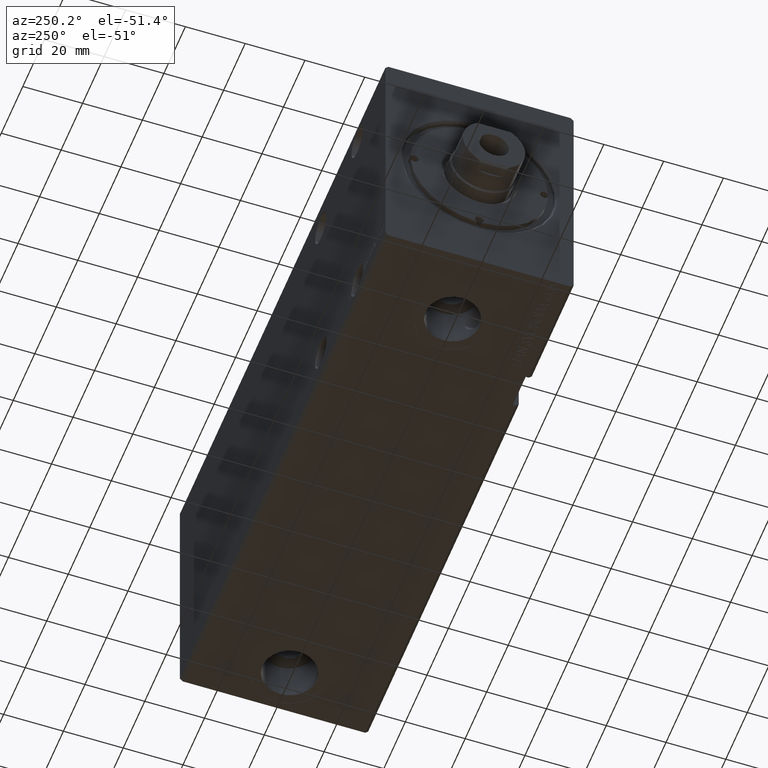
[diagram: clean part render]
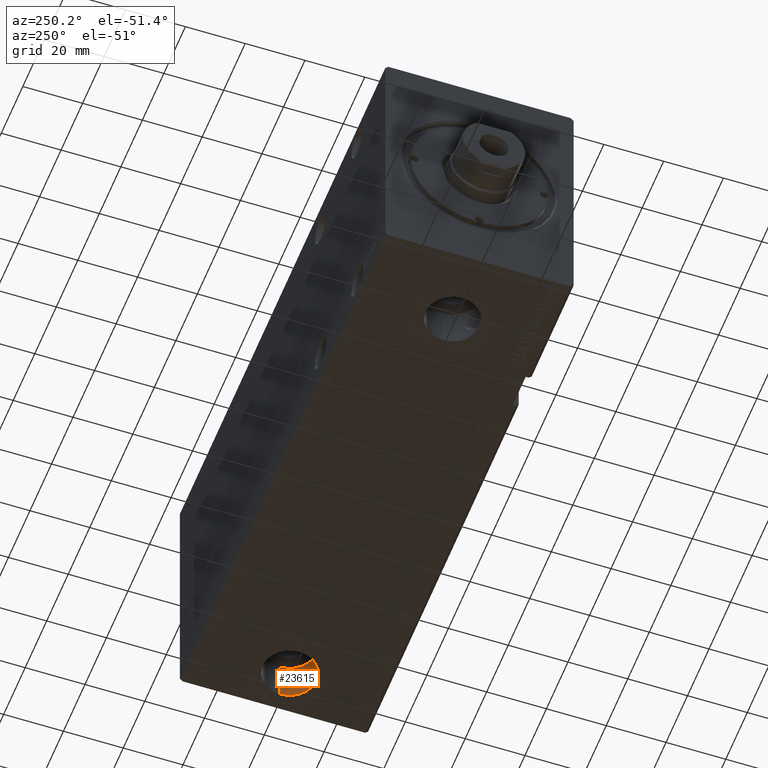
[diagram: same view with one face highlighted and labeled with its STEP entity id]
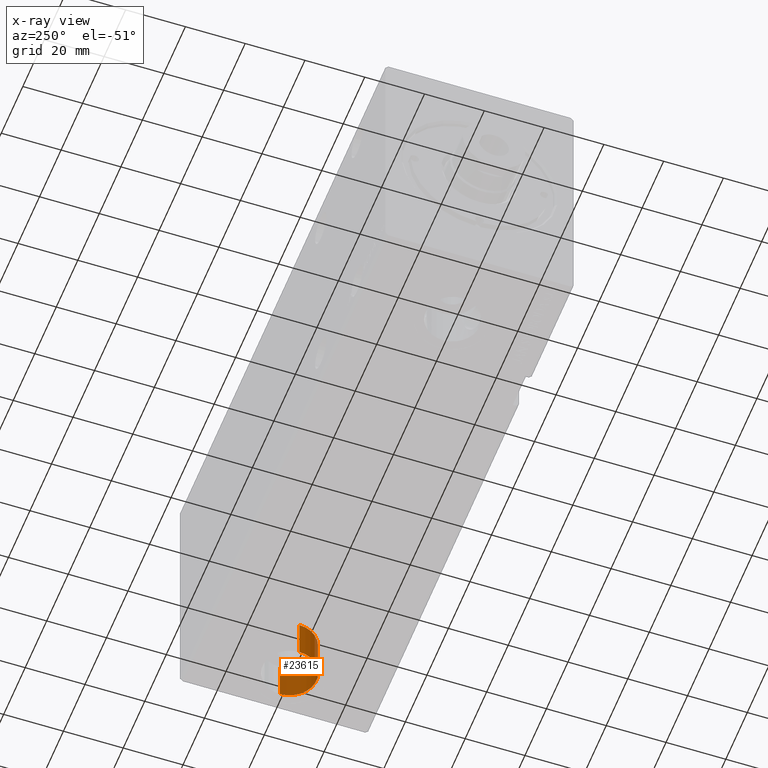
[diagram: x-ray of the same camera — body ghosted, the highlighted face saturated]
A machine part, auxiliary view. The second image highlights one B-rep face of the part: STEP entity #23615.
The next image is the same camera in x-ray: the body ghosted, the highlighted face saturated — about 0% of this face is hidden behind the body in this view.
In plain terms, the highlighted cylindrical surface (edge-blend (fillet) strip) has radius 9 mm, axis along (-0, -0, -1).
Its self-contained STEP definition (entity closure, byte-faithful):
#184 = ORIENTED_EDGE ( 'NONE', *, *, #38082, .F. ) ;
#1821 = EDGE_LOOP ( 'NONE', ( #184, #36458, #28229, #22100 ) ) ;
#1953 = DIRECTION ( 'NONE',  ( -0.000000000000000000, -0.000000000000000000, -1.000000000000000000 ) ) ;
#7195 = CARTESIAN_POINT ( 'NONE',  ( 176.5000000000000000, -2.031972879945228792E-14, -42.40000000000000568 ) ) ;
#7773 = EDGE_CURVE ( 'NONE', #13992, #35245, #26788, .T. ) ;
#8799 = CARTESIAN_POINT ( 'NONE',  ( 167.4999999999999716, -2.031972879945228792E-14, -28.80000000000000782 ) ) ;
#9321 = DIRECTION ( 'NONE',  ( -1.000000000000000000, 0.000000000000000000, 0.000000000000000000 ) ) ;
#9384 = CARTESIAN_POINT ( 'NONE',  ( 185.5000000000000000, -1.921754668021966843E-14, -42.40000000000000568 ) ) ;
#10472 = CARTESIAN_POINT ( 'NONE',  ( 185.5000000000000000, -1.921754668021966843E-14, -28.80000000000000782 ) ) ;
#13426 = AXIS2_PLACEMENT_3D ( 'NONE', #33755, #18823, #9321 ) ;
#13506 = LINE ( 'NONE', #10472, #26476 ) ;
#13992 = VERTEX_POINT ( 'NONE', #29199 ) ;
#14900 = VECTOR ( 'NONE', #1953, 1000.000000000000000 ) ;
#15388 = CIRCLE ( 'NONE', #33415, 9.000000000000007105 ) ;
#15808 = CARTESIAN_POINT ( 'NONE',  ( 176.5000000000000000, -2.031972879945228792E-14, -28.80000000000000782 ) ) ;
#15983 = CYLINDRICAL_SURFACE ( 'NONE', #13426, 9.000000000000007105 ) ;
#16198 = DIRECTION ( 'NONE',  ( -1.000000000000000000, 0.000000000000000000, 0.000000000000000000 ) ) ;
#18173 = CARTESIAN_POINT ( 'NONE',  ( 167.4999999999999716, -2.031972879945228792E-14, -42.40000000000000568 ) ) ;
#18823 = DIRECTION ( 'NONE',  ( -0.000000000000000000, -0.000000000000000000, -1.000000000000000000 ) ) ;
#20085 = CIRCLE ( 'NONE', #37488, 9.000000000000007105 ) ;
#22100 = ORIENTED_EDGE ( 'NONE', *, *, #7773, .F. ) ;
#22573 = CARTESIAN_POINT ( 'NONE',  ( 185.5000000000000000, -1.921754668021966843E-14, -28.80000000000000782 ) ) ;
#22999 = DIRECTION ( 'NONE',  ( -0.000000000000000000, -0.000000000000000000, -1.000000000000000000 ) ) ;
#23615 = ADVANCED_FACE ( 'NONE', ( #33546 ), #15983, .F. ) ;
#25262 = EDGE_CURVE ( 'NONE', #29421, #35245, #15388, .T. ) ;
#26476 = VECTOR ( 'NONE', #22999, 1000.000000000000000 ) ;
#26788 = LINE ( 'NONE', #8799, #14900 ) ;
#28110 = DIRECTION ( 'NONE',  ( 0.000000000000000000, 0.000000000000000000, -1.000000000000000000 ) ) ;
#28229 = ORIENTED_EDGE ( 'NONE', *, *, #25262, .T. ) ;
#28334 = VERTEX_POINT ( 'NONE', #22573 ) ;
#29199 = CARTESIAN_POINT ( 'NONE',  ( 167.4999999999999716, -2.031972879945228792E-14, -28.80000000000000782 ) ) ;
#29421 = VERTEX_POINT ( 'NONE', #9384 ) ;
#33415 = AXIS2_PLACEMENT_3D ( 'NONE', #7195, #38280, #34850 ) ;
#33546 = FACE_OUTER_BOUND ( 'NONE', #1821, .T. ) ;
#33755 = CARTESIAN_POINT ( 'NONE',  ( 176.5000000000000000, -2.031972879945228792E-14, -28.80000000000000782 ) ) ;
#34850 = DIRECTION ( 'NONE',  ( -1.000000000000000000, 0.000000000000000000, 0.000000000000000000 ) ) ;
#35245 = VERTEX_POINT ( 'NONE', #18173 ) ;
#35572 = EDGE_CURVE ( 'NONE', #28334, #29421, #13506, .T. ) ;
#36458 = ORIENTED_EDGE ( 'NONE', *, *, #35572, .T. ) ;
#37488 = AXIS2_PLACEMENT_3D ( 'NONE', #15808, #28110, #16198 ) ;
#38082 = EDGE_CURVE ( 'NONE', #28334, #13992, #20085, .T. ) ;
#38280 = DIRECTION ( 'NONE',  ( 0.000000000000000000, 0.000000000000000000, -1.000000000000000000 ) ) ;